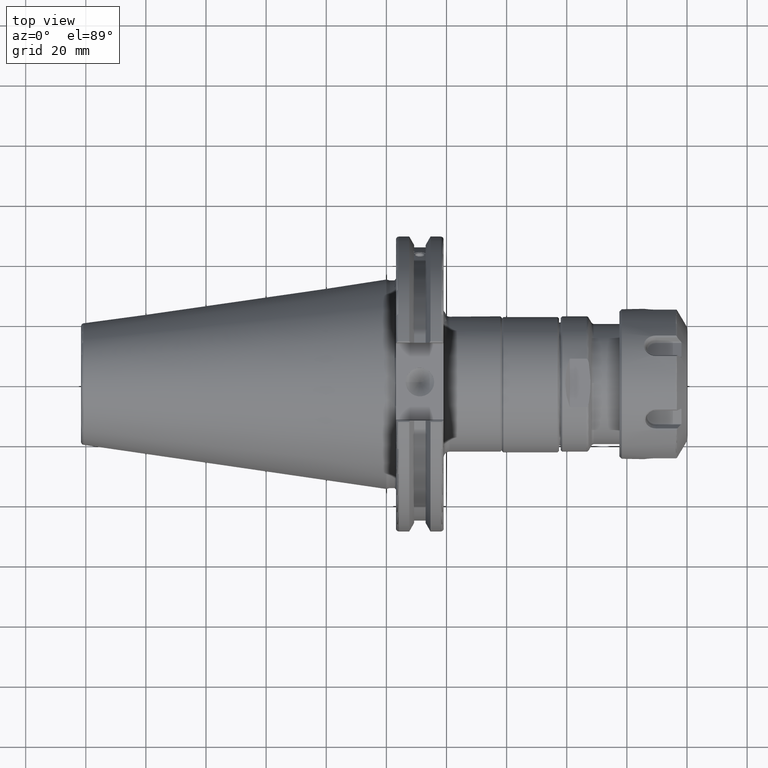
[diagram: clean part render]
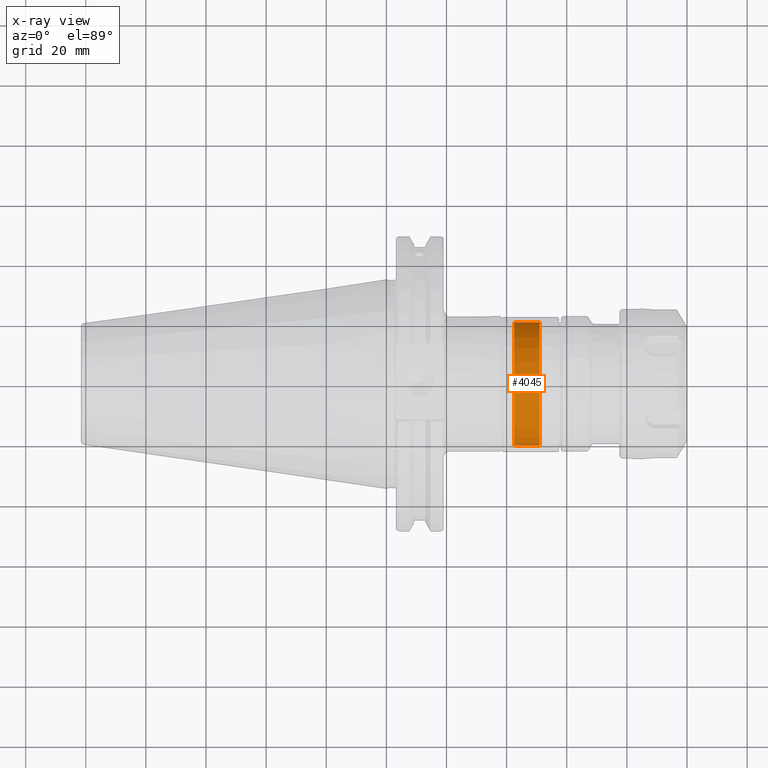
[diagram: x-ray — body ghosted, one internal face saturated and labeled with its STEP entity id]
A machine part, top view, then the same camera in x-ray: the body is ghosted and one INTERNAL B-rep face — a face not visible from any outside direction — is saturated and labeled: STEP entity #4045.
In plain terms, the highlighted cylindrical surface (bore or boss wall) has radius 20.5 mm, axis along (1, 0, 0).
Its self-contained STEP definition (entity closure, byte-faithful):
#371=CYLINDRICAL_SURFACE('',#4445,20.5);
#455=FACE_OUTER_BOUND('',#718,.T.);
#718=EDGE_LOOP('',(#2814,#2815,#2816,#2817,#2818));
#1015=LINE('',#6235,#1257);
#1257=VECTOR('',#5007,20.5);
#1506=CIRCLE('',#4443,20.5);
#1507=CIRCLE('',#4444,20.5);
#1508=CIRCLE('',#4446,20.5);
#1748=VERTEX_POINT('',#6228);
#1749=VERTEX_POINT('',#6230);
#1750=VERTEX_POINT('',#6234);
#2163=EDGE_CURVE('',#1748,#1749,#1506,.T.);
#2164=EDGE_CURVE('',#1749,#1748,#1507,.T.);
#2165=EDGE_CURVE('',#1749,#1750,#1015,.T.);
#2166=EDGE_CURVE('',#1750,#1750,#1508,.T.);
#2814=ORIENTED_EDGE('',*,*,#2163,.F.);
#2815=ORIENTED_EDGE('',*,*,#2164,.F.);
#2816=ORIENTED_EDGE('',*,*,#2165,.T.);
#2817=ORIENTED_EDGE('',*,*,#2166,.T.);
#2818=ORIENTED_EDGE('',*,*,#2165,.F.);
#4045=ADVANCED_FACE('',(#455),#371,.T.);
#4443=AXIS2_PLACEMENT_3D('',#6231,#5001,#5002);
#4444=AXIS2_PLACEMENT_3D('',#6232,#5003,#5004);
#4445=AXIS2_PLACEMENT_3D('',#6233,#5005,#5006);
#4446=AXIS2_PLACEMENT_3D('',#6236,#5008,#5009);
#5001=DIRECTION('center_axis',(1.,0.,0.));
#5002=DIRECTION('ref_axis',(0.,-1.,0.));
#5003=DIRECTION('center_axis',(1.,0.,0.));
#5004=DIRECTION('ref_axis',(0.,-1.,0.));
#5005=DIRECTION('center_axis',(1.,0.,0.));
#5006=DIRECTION('ref_axis',(0.,1.,0.));
#5007=DIRECTION('',(-1.,0.,0.));
#5008=DIRECTION('center_axis',(1.,0.,0.));
#5009=DIRECTION('ref_axis',(0.,0.,-1.));
#6228=CARTESIAN_POINT('',(51.,20.5,2.51052593825207E-15));
#6230=CARTESIAN_POINT('',(51.,-20.5,-2.51052593825207E-15));
#6231=CARTESIAN_POINT('Origin',(51.,0.,0.));
#6232=CARTESIAN_POINT('Origin',(51.,0.,0.));
#6233=CARTESIAN_POINT('Origin',(47.,0.,0.));
#6234=CARTESIAN_POINT('',(42.5,-20.5,-2.51052593825207E-15));
#6235=CARTESIAN_POINT('',(47.,-20.5,-2.51052593825207E-15));
#6236=CARTESIAN_POINT('Origin',(42.5,0.,0.));